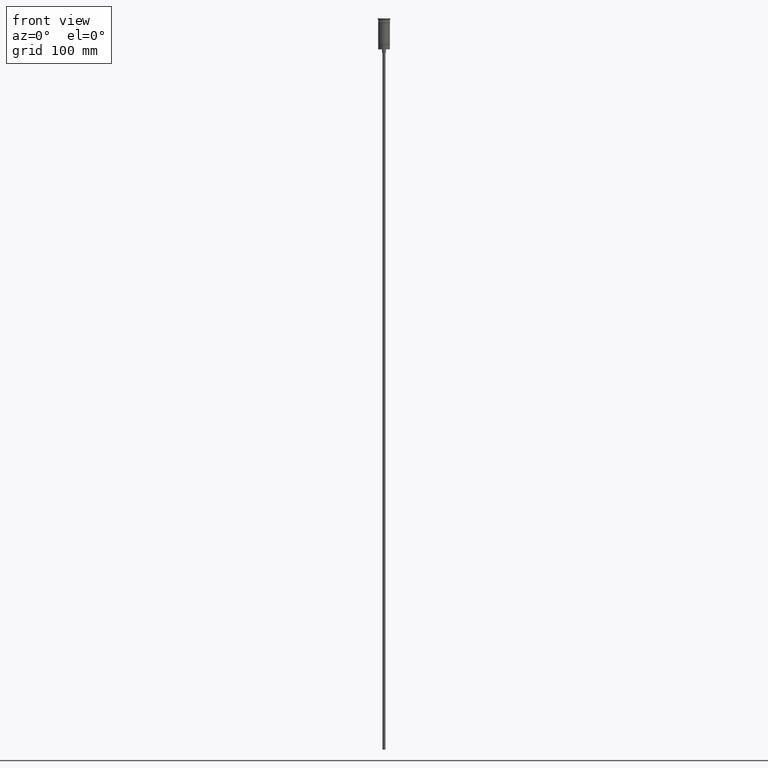
[diagram: clean part render]
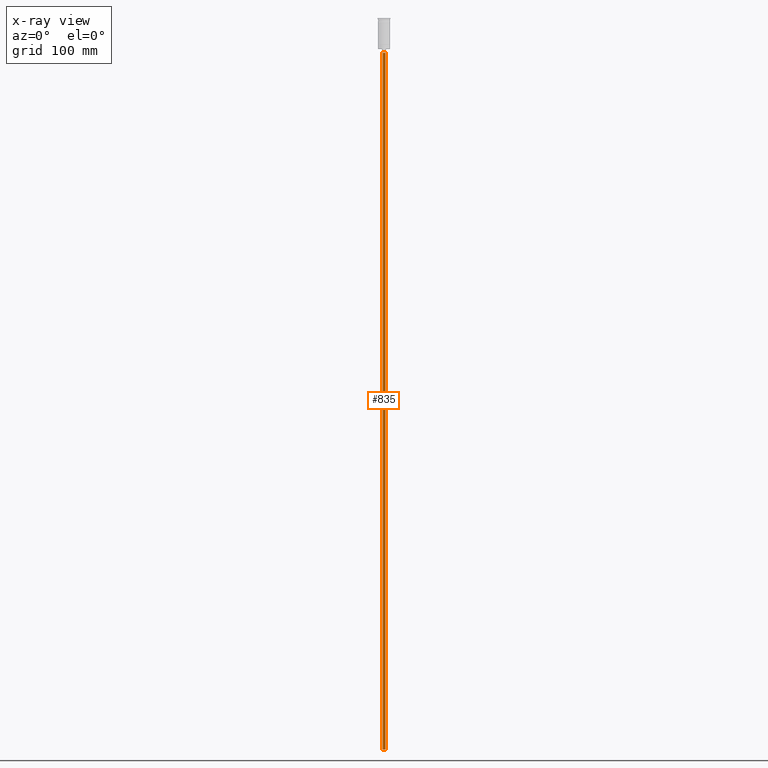
[diagram: x-ray — body ghosted, one internal face saturated and labeled with its STEP entity id]
A machine part, front view, then the same camera in x-ray: the body is ghosted and one INTERNAL B-rep face — a face not visible from any outside direction — is saturated and labeled: STEP entity #835.
In plain terms, the highlighted cylindrical surface (edge-blend (fillet) strip) has radius 1.25 mm, axis along (-0, -0, 1).
Its self-contained STEP definition (entity closure, byte-faithful):
#4 = CARTESIAN_POINT ( 'NONE',  ( 0.000000000000000000, 0.000000000000000000, -626.5000000000000000 ) ) ;
#8 = CARTESIAN_POINT ( 'NONE',  ( 1.250000000000000000, 0.000000000000000000, -626.5000000000000000 ) ) ;
#47 = VERTEX_POINT ( 'NONE', #205 ) ;
#72 = EDGE_LOOP ( 'NONE', ( #543, #1493, #1222, #1229 ) ) ;
#81 = CYLINDRICAL_SURFACE ( 'NONE', #1456, 1.250000000000000000 ) ;
#143 = CARTESIAN_POINT ( 'NONE',  ( 1.250000000000000000, 0.000000000000000000, -29.50000000000000000 ) ) ;
#205 = CARTESIAN_POINT ( 'NONE',  ( -1.250000000000000000, 1.530808498934191571E-16, -626.5000000000000000 ) ) ;
#230 = DIRECTION ( 'NONE',  ( -0.000000000000000000, -0.000000000000000000, 1.000000000000000000 ) ) ;
#261 = VERTEX_POINT ( 'NONE', #143 ) ;
#269 = CARTESIAN_POINT ( 'NONE',  ( -1.250000000000000000, 1.530808498934191571E-16, -29.50000000000000000 ) ) ;
#275 = EDGE_CURVE ( 'NONE', #47, #1072, #883, .T. ) ;
#291 = AXIS2_PLACEMENT_3D ( 'NONE', #667, #1150, #548 ) ;
#432 = EDGE_CURVE ( 'NONE', #653, #261, #993, .T. ) ;
#446 = CARTESIAN_POINT ( 'NONE',  ( 0.000000000000000000, 0.000000000000000000, -626.5000000000000000 ) ) ;
#543 = ORIENTED_EDGE ( 'NONE', *, *, #275, .F. ) ;
#548 = DIRECTION ( 'NONE',  ( -1.000000000000000000, 0.000000000000000000, 0.000000000000000000 ) ) ;
#629 = DIRECTION ( 'NONE',  ( 0.000000000000000000, 0.000000000000000000, -1.000000000000000000 ) ) ;
#653 = VERTEX_POINT ( 'NONE', #269 ) ;
#667 = CARTESIAN_POINT ( 'NONE',  ( 0.000000000000000000, 0.000000000000000000, -29.50000000000000000 ) ) ;
#750 = LINE ( 'NONE', #1336, #1270 ) ;
#835 = ADVANCED_FACE ( 'NONE', ( #1178 ), #81, .T. ) ;
#844 = CARTESIAN_POINT ( 'NONE',  ( 1.250000000000000000, 0.000000000000000000, -626.5000000000000000 ) ) ;
#855 = DIRECTION ( 'NONE',  ( -0.000000000000000000, -0.000000000000000000, 1.000000000000000000 ) ) ;
#860 = VECTOR ( 'NONE', #855, 1000.000000000000000 ) ;
#883 = CIRCLE ( 'NONE', #1396, 1.250000000000000000 ) ;
#971 = EDGE_CURVE ( 'NONE', #1072, #261, #1344, .T. ) ;
#981 = EDGE_CURVE ( 'NONE', #47, #653, #750, .T. ) ;
#993 = CIRCLE ( 'NONE', #291, 1.250000000000000000 ) ;
#1072 = VERTEX_POINT ( 'NONE', #8 ) ;
#1150 = DIRECTION ( 'NONE',  ( 0.000000000000000000, 0.000000000000000000, -1.000000000000000000 ) ) ;
#1178 = FACE_OUTER_BOUND ( 'NONE', #72, .T. ) ;
#1222 = ORIENTED_EDGE ( 'NONE', *, *, #432, .T. ) ;
#1229 = ORIENTED_EDGE ( 'NONE', *, *, #971, .F. ) ;
#1270 = VECTOR ( 'NONE', #230, 1000.000000000000000 ) ;
#1306 = DIRECTION ( 'NONE',  ( 1.000000000000000000, 0.000000000000000000, 0.000000000000000000 ) ) ;
#1336 = CARTESIAN_POINT ( 'NONE',  ( -1.250000000000000000, 1.530808498934191571E-16, -626.5000000000000000 ) ) ;
#1344 = LINE ( 'NONE', #844, #860 ) ;
#1347 = DIRECTION ( 'NONE',  ( -1.000000000000000000, 0.000000000000000000, 0.000000000000000000 ) ) ;
#1396 = AXIS2_PLACEMENT_3D ( 'NONE', #4, #629, #1347 ) ;
#1417 = DIRECTION ( 'NONE',  ( -0.000000000000000000, -0.000000000000000000, 1.000000000000000000 ) ) ;
#1456 = AXIS2_PLACEMENT_3D ( 'NONE', #446, #1417, #1306 ) ;
#1493 = ORIENTED_EDGE ( 'NONE', *, *, #981, .T. ) ;